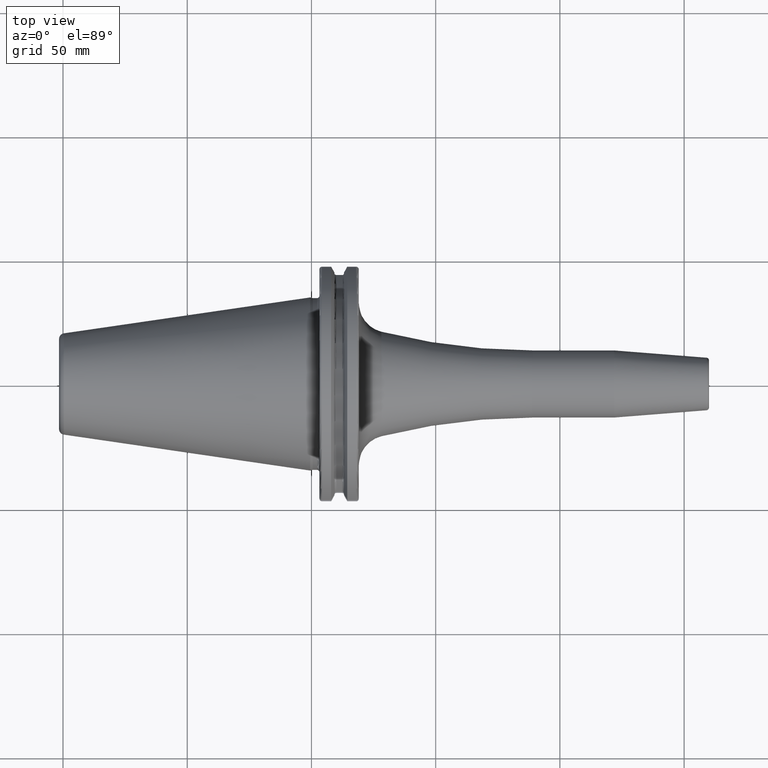
[diagram: clean part render]
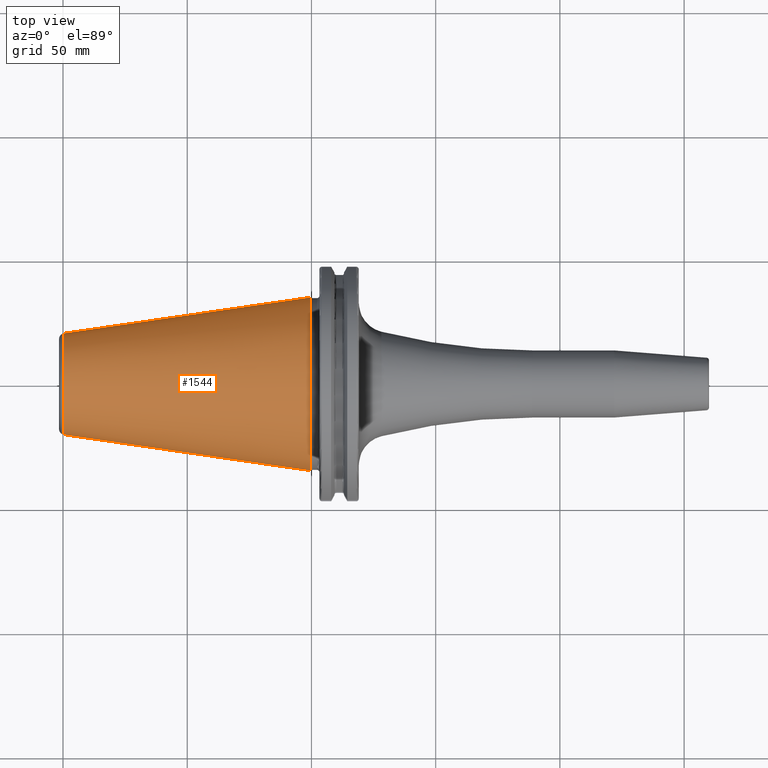
[diagram: same view with one face highlighted and labeled with its STEP entity id]
A machine part, top view. The second image highlights one B-rep face of the part: STEP entity #1544.
In plain terms, the highlighted conical surface has half-angle 8.298 deg.
Its self-contained STEP definition (entity closure, byte-faithful):
#37=CARTESIAN_POINT('',(-9.967471700563E1,0.E0,0.E0));
#38=DIRECTION('',(1.E0,0.E0,0.E0));
#39=DIRECTION('',(0.E0,1.E0,0.E0));
#40=AXIS2_PLACEMENT_3D('',#37,#38,#39);
#42=CARTESIAN_POINT('',(-4.896823332305E-1,0.E0,0.E0));
#43=DIRECTION('',(1.E0,0.E0,0.E0));
#44=DIRECTION('',(0.E0,1.E0,0.E0));
#45=AXIS2_PLACEMENT_3D('',#42,#43,#44);
#47=DIRECTION('',(-9.895312636440E-1,-1.443186691705E-1,0.E0));
#48=VECTOR('',#47,1.002343617797E2);
#49=CARTESIAN_POINT('',(-4.896823332305E-1,3.485358204157E1,0.E0));
#50=LINE('',#49,#48);
#51=DIRECTION('',(-9.895312636440E-1,1.443186691705E-1,0.E0));
#52=VECTOR('',#51,1.002343617797E2);
#53=CARTESIAN_POINT('',(-4.896823332305E-1,-3.485358204157E1,0.E0));
#54=LINE('',#53,#52);
#1226=CARTESIAN_POINT('',(-9.967471700563E1,2.038789234437E1,0.E0));
#1228=VERTEX_POINT('',#1226);
#1230=CARTESIAN_POINT('',(-9.967471700563E1,-2.038789234437E1,0.E0));
#1232=VERTEX_POINT('',#1230);
#1294=CARTESIAN_POINT('',(-4.896823332305E-1,3.485358204157E1,0.E0));
#1295=VERTEX_POINT('',#1294);
#1296=CARTESIAN_POINT('',(-4.896823332305E-1,-3.485358204157E1,0.E0));
#1297=VERTEX_POINT('',#1296);
#1530=CARTESIAN_POINT('',(-5.008219966943E1,0.E0,0.E0));
#1531=DIRECTION('',(1.E0,0.E0,0.E0));
#1532=DIRECTION('',(0.E0,-1.E0,0.E0));
#1533=AXIS2_PLACEMENT_3D('',#1530,#1531,#1532);
#1534=CONICAL_SURFACE('',#1533,2.762073719297E1,8.297826828206E0);
#1536=ORIENTED_EDGE('',*,*,#1535,.F.);
#1538=ORIENTED_EDGE('',*,*,#1537,.T.);
#1540=ORIENTED_EDGE('',*,*,#1539,.T.);
#1541=ORIENTED_EDGE('',*,*,#1523,.F.);
#1542=EDGE_LOOP('',(#1536,#1538,#1540,#1541));
#1543=FACE_OUTER_BOUND('',#1542,.F.);
#1544=ADVANCED_FACE('',(#1543),#1534,.T.);
#41=CIRCLE('',#40,2.038789234437E1);
#46=CIRCLE('',#45,3.485358204157E1);
#1523=EDGE_CURVE('',#1228,#1232,#41,.T.);
#1535=EDGE_CURVE('',#1295,#1228,#50,.T.);
#1537=EDGE_CURVE('',#1295,#1297,#46,.T.);
#1539=EDGE_CURVE('',#1297,#1232,#54,.T.);